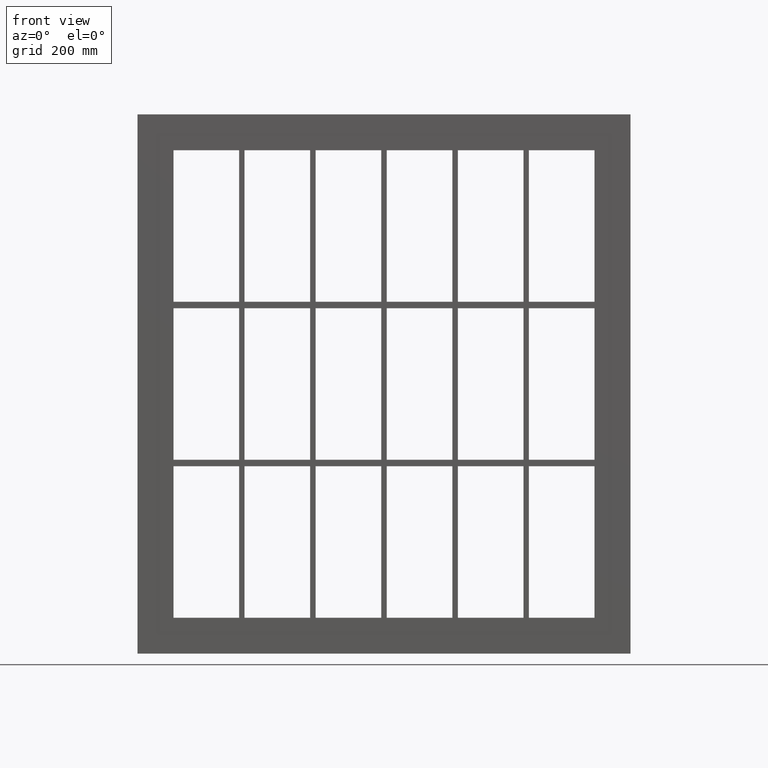
[diagram: clean part render]
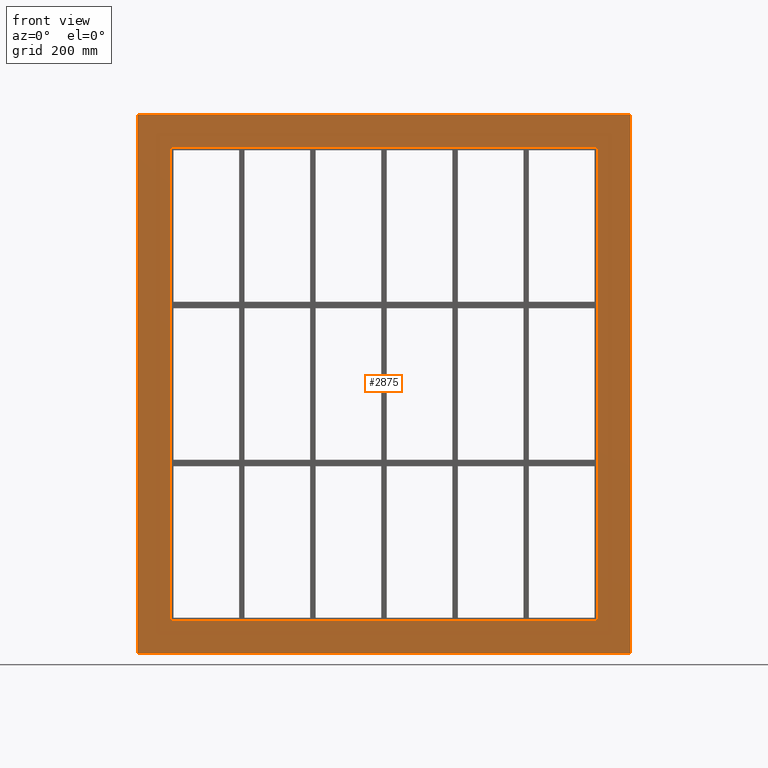
[diagram: same view with one face highlighted and labeled with its STEP entity id]
A machine part, front view. The second image highlights one B-rep face of the part: STEP entity #2875.
In plain terms, the highlighted planar face has unit normal (0, 1, 0).
Its self-contained STEP definition (entity closure, byte-faithful):
#2766=CARTESIAN_POINT('',(0.0,0.0,0.0));
#2767=DIRECTION('',(0.0,1.0,0.0));
#2768=DIRECTION('',(0.0,0.0,1.0));
#2769=AXIS2_PLACEMENT_3D('',#2766,#2767,#2768);
#2770=PLANE('',#2769);
#2771=CARTESIAN_POINT('',(-452.50000000000006,0.0,495.00000000000006));
#2772=VERTEX_POINT('',#2771);
#2773=CARTESIAN_POINT('',(452.50000000000006,0.0,495.00000000000006));
#2774=VERTEX_POINT('',#2773);
#2775=CARTESIAN_POINT('',(-452.50000000000006,0.0,495.00000000000006));
#2776=DIRECTION('',(1.0,0.0,0.0));
#2777=VECTOR('',#2776,905.00000000000011);
#2778=LINE('',#2775,#2777);
#2779=EDGE_CURVE('',#2772,#2774,#2778,.T.);
#2780=ORIENTED_EDGE('',*,*,#2779,.F.);
#2781=CARTESIAN_POINT('',(-452.50000000000006,0.0,-495.00000000000006));
#2782=VERTEX_POINT('',#2781);
#2783=CARTESIAN_POINT('',(-452.50000000000006,0.0,-495.00000000000006));
#2784=DIRECTION('',(0.0,0.0,1.0));
#2785=VECTOR('',#2784,990.00000000000011);
#2786=LINE('',#2783,#2785);
#2787=EDGE_CURVE('',#2782,#2772,#2786,.T.);
#2788=ORIENTED_EDGE('',*,*,#2787,.F.);
#2789=CARTESIAN_POINT('',(452.50000000000006,0.0,-495.00000000000006));
#2790=VERTEX_POINT('',#2789);
#2791=CARTESIAN_POINT('',(452.50000000000006,0.0,-495.00000000000006));
#2792=DIRECTION('',(-1.0,0.0,0.0));
#2793=VECTOR('',#2792,905.00000000000011);
#2794=LINE('',#2791,#2793);
#2795=EDGE_CURVE('',#2790,#2782,#2794,.T.);
#2796=ORIENTED_EDGE('',*,*,#2795,.F.);
#2797=CARTESIAN_POINT('',(452.50000000000006,0.0,495.00000000000006));
#2798=DIRECTION('',(0.0,0.0,-1.0));
#2799=VECTOR('',#2798,990.00000000000011);
#2800=LINE('',#2797,#2799);
#2801=EDGE_CURVE('',#2774,#2790,#2800,.T.);
#2802=ORIENTED_EDGE('',*,*,#2801,.F.);
#2803=EDGE_LOOP('',(#2780,#2788,#2796,#2802));
#2804=FACE_OUTER_BOUND('',#2803,.T.);
#2805=CARTESIAN_POINT('',(-392.5,0.0,-429.00000000000006));
#2806=VERTEX_POINT('',#2805);
#2807=CARTESIAN_POINT('',(-386.50000000000006,0.0,-435.0));
#2808=VERTEX_POINT('',#2807);
#2809=CARTESIAN_POINT('',(-386.50000000000006,0.0,-429.00000000000006));
#2810=DIRECTION('',(0.0,-1.0,0.0));
#2811=DIRECTION('',(-0.707106781186548,0.0,-0.707106781186548));
#2812=AXIS2_PLACEMENT_3D('',#2809,#2810,#2811);
#2813=CIRCLE('',#2812,6.000000000000002);
#2814=EDGE_CURVE('',#2806,#2808,#2813,.T.);
#2815=ORIENTED_EDGE('',*,*,#2814,.F.);
#2816=CARTESIAN_POINT('',(-392.5,0.0,429.00000000000006));
#2817=VERTEX_POINT('',#2816);
#2818=CARTESIAN_POINT('',(-392.5,0.0,429.0));
#2819=DIRECTION('',(0.0,0.0,-1.0));
#2820=VECTOR('',#2819,858.0);
#2821=LINE('',#2818,#2820);
#2822=EDGE_CURVE('',#2817,#2806,#2821,.T.);
#2823=ORIENTED_EDGE('',*,*,#2822,.F.);
#2824=CARTESIAN_POINT('',(-386.5,0.0,435.00000000000011));
#2825=VERTEX_POINT('',#2824);
#2826=CARTESIAN_POINT('',(-386.5,0.0,429.00000000000006));
#2827=DIRECTION('',(0.0,-1.0,0.0));
#2828=DIRECTION('',(-0.707106781186547,0.0,0.707106781186547));
#2829=AXIS2_PLACEMENT_3D('',#2826,#2827,#2828);
#2830=CIRCLE('',#2829,6.0);
#2831=EDGE_CURVE('',#2825,#2817,#2830,.T.);
#2832=ORIENTED_EDGE('',*,*,#2831,.F.);
#2833=CARTESIAN_POINT('',(386.50000000000006,0.0,435.00000000000011));
#2834=VERTEX_POINT('',#2833);
#2835=CARTESIAN_POINT('',(386.5,0.0,435.00000000000011));
#2836=DIRECTION('',(-1.0,0.0,0.0));
#2837=VECTOR('',#2836,773.0);
#2838=LINE('',#2835,#2837);
#2839=EDGE_CURVE('',#2834,#2825,#2838,.T.);
#2840=ORIENTED_EDGE('',*,*,#2839,.F.);
#2841=CARTESIAN_POINT('',(392.50000000000006,0.0,429.00000000000011));
#2842=VERTEX_POINT('',#2841);
#2843=CARTESIAN_POINT('',(386.50000000000006,0.0,429.00000000000011));
#2844=DIRECTION('',(0.0,-1.0,0.0));
#2845=DIRECTION('',(0.707106781186539,0.0,0.707106781186556));
#2846=AXIS2_PLACEMENT_3D('',#2843,#2844,#2845);
#2847=CIRCLE('',#2846,6.000000000000001);
#2848=EDGE_CURVE('',#2842,#2834,#2847,.T.);
#2849=ORIENTED_EDGE('',*,*,#2848,.F.);
#2850=CARTESIAN_POINT('',(392.50000000000006,0.0,-428.99999999999989));
#2851=VERTEX_POINT('',#2850);
#2852=CARTESIAN_POINT('',(392.50000000000006,0.0,-428.99999999999994));
#2853=DIRECTION('',(0.0,0.0,1.0));
#2854=VECTOR('',#2853,858.0);
#2855=LINE('',#2852,#2854);
#2856=EDGE_CURVE('',#2851,#2842,#2855,.T.);
#2857=ORIENTED_EDGE('',*,*,#2856,.F.);
#2858=CARTESIAN_POINT('',(386.50000000000006,0.0,-435.0));
#2859=VERTEX_POINT('',#2858);
#2860=CARTESIAN_POINT('',(386.50000000000006,0.0,-428.99999999999989));
#2861=DIRECTION('',(0.0,-1.0,0.0));
#2862=DIRECTION('',(0.707106781186539,0.0,-0.707106781186556));
#2863=AXIS2_PLACEMENT_3D('',#2860,#2861,#2862);
#2864=CIRCLE('',#2863,6.000000000000001);
#2865=EDGE_CURVE('',#2859,#2851,#2864,.T.);
#2866=ORIENTED_EDGE('',*,*,#2865,.F.);
#2867=CARTESIAN_POINT('',(-386.5,0.0,-435.0));
#2868=DIRECTION('',(1.0,0.0,0.0));
#2869=VECTOR('',#2868,773.0);
#2870=LINE('',#2867,#2869);
#2871=EDGE_CURVE('',#2808,#2859,#2870,.T.);
#2872=ORIENTED_EDGE('',*,*,#2871,.F.);
#2873=EDGE_LOOP('',(#2815,#2823,#2832,#2840,#2849,#2857,#2866,#2872));
#2874=FACE_BOUND('',#2873,.T.);
#2875=ADVANCED_FACE('',(#2804,#2874),#2770,.F.);